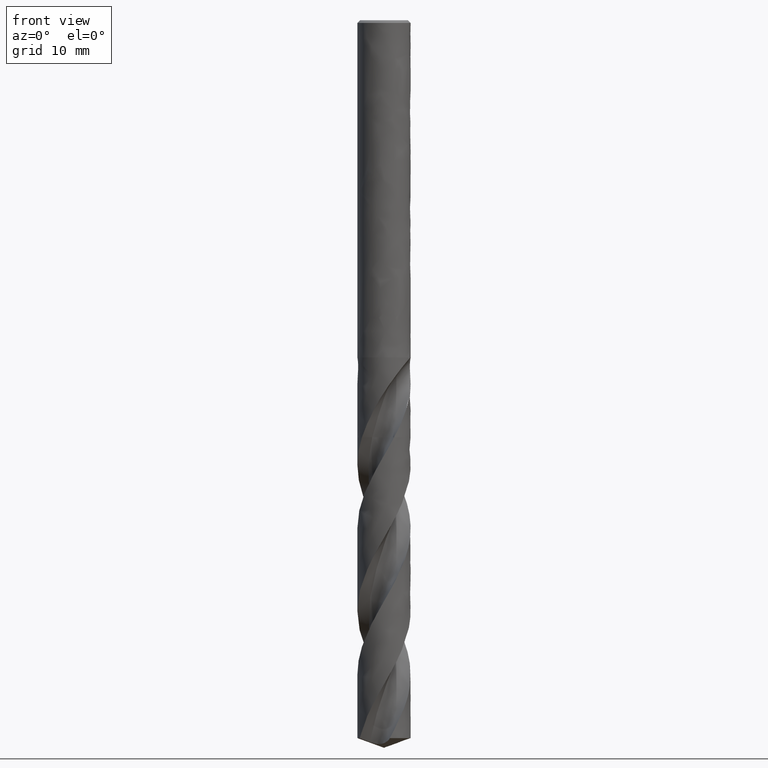
[diagram: clean part render]
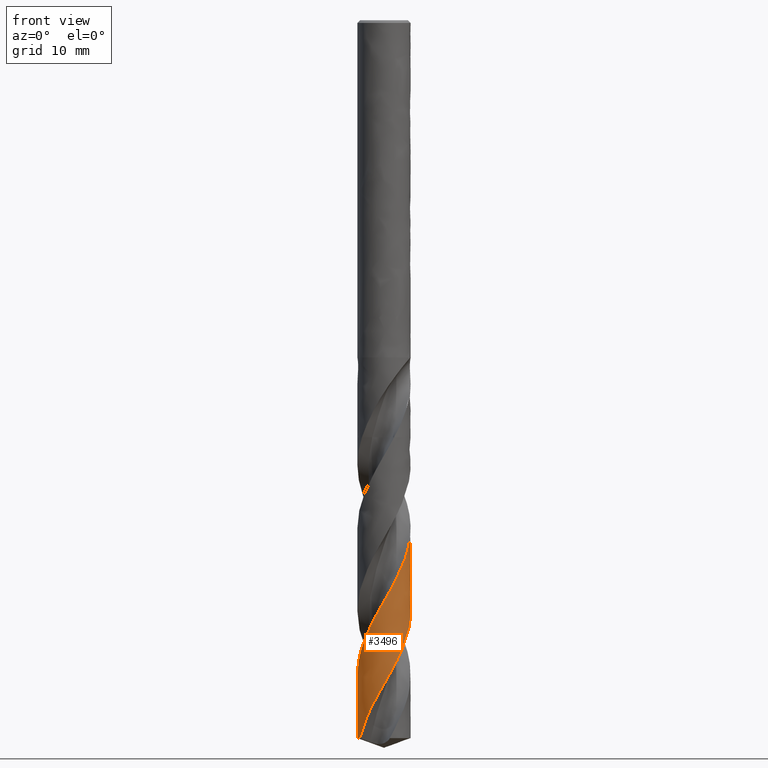
[diagram: same view with one face highlighted and labeled with its STEP entity id]
A machine part, front view. The second image highlights one B-rep face of the part: STEP entity #3496.
In plain terms, the highlighted face is a freeform B-spline surface patch.
Its self-contained STEP definition (entity closure, byte-faithful):
#1801 = VERTEX_POINT('', #1802);
#1802 = CARTESIAN_POINT('', (-1.15359555335687, 2.76933517279423, -47.));
#1863 = EDGE_CURVE('', #1864, #1801, #1866, .T.);
#1864 = VERTEX_POINT('', #1865);
#1865 = CARTESIAN_POINT('', (-3., 3.06161699786838E-15, -47.));
#1866 = CIRCLE('', #1867, 3.);
#1867 = AXIS2_PLACEMENT_3D('', #1868, #1869, #1870);
#1868 = CARTESIAN_POINT('', (1.76221774462768E-31, 2.87791997799628E-15, -47.));
#1869 = DIRECTION('', (3.74939945665464E-33, 6.12323399573677E-17, -1.));
#1870 = DIRECTION('', (-1., 6.12323399573677E-17, 0.));
#3105 = VERTEX_POINT('', #3106);
#3106 = CARTESIAN_POINT('', (-3., 3.25200755912258E-15, -50.1093138264314));
#3131 = EDGE_CURVE('', #3132, #3105, #3134, .T.);
#3132 = VERTEX_POINT('', #3133);
#3133 = CARTESIAN_POINT('', (-2.73960958333734, -1.22251352993994, -80.9080892972014));
#3134 = B_SPLINE_CURVE_WITH_KNOTS('', 3, (#3135, #3136, #3137, #3138, #3139, #3140, #3141, #3142, #3143, #3144, #3145, #3146, #3147, #3148, #3149, #3150, #3151, #3152, #3153, #3154, #3155, #3156, #3157, #3158, #3159, #3160, #3161, #3162, #3163, #3164, #3165, #3166, #3167, #3168, #3169, #3170, #3171, #3172, #3173, #3174, #3175, #3176, #3177, #3178, #3179, #3180, #3181, #3182, #3183, #3184, #3185, #3186, #3187, #3188, #3189, #3190, #3191, #3192, #3193, #3194, #3195, #3196, #3197, #3198, #3199, #3200, #3201, #3202, #3203, #3204, #3205, #3206, #3207, #3208, #3209, #3210, #3211, #3212, #3213, #3214, #3215, #3216, #3217, #3218, #3219, #3220, #3221, #3222, #3223, #3224, #3225, #3226, #3227, #3228, #3229, #3230, #3231, #3232, #3233, #3234, #3235, #3236, #3237, #3238, #3239, #3240, #3241, #3242, #3243, #3244, #3245, #3246, #3247, #3248, #3249, #3250, #3251, #3252, #3253, #3254, #3255, #3256, #3257, #3258, #3259, #3260, #3261, #3262, #3263, #3264, #3265, #3266, #3267, #3268, #3269, #3270, #3271, #3272, #3273, #3274, #3275, #3276, #3277, #3278, #3279, #3280, #3281, #3282, #3283, #3284, #3285, #3286, #3287, #3288, #3289, #3290, #3291, #3292, #3293, #3294, #3295, #3296, #3297, #3298, #3299, #3300, #3301, #3302, #3303, #3304, #3305, #3306, #3307, #3308, #3309, #3310, #3311, #3312, #3313, #3314, #3315), .UNSPECIFIED., .F., .U., (4, 3, 3, 3, 3, 3, 3, 3, 3, 3, 3, 3, 3, 3, 3, 3, 3, 3, 3, 3, 3, 3, 3, 3, 3, 3, 3, 3, 3, 3, 3, 3, 3, 3, 3, 3, 3, 3, 3, 3, 3, 3, 3, 3, 3, 3, 3, 3, 3, 3, 3, 3, 3, 3, 3, 3, 3, 3, 3, 3, 4), (0., 0.665718253699952, 1.33118446681704, 1.99640345409991, 2.66137848778931, 3.32611136859527, 3.99060241566733, 4.65485050421192, 5.31885303285902, 5.98260586578361, 6.64610323248587, 6.94133426738575, 6.98025186904818, 7.01918081919816, 7.68593522545791, 8.35239945581532, 9.01858618202882, 9.68450566736711, 10.3501660677568, 11.015573659672, 11.6807330088822, 12.345647089974, 13.0103173633935, 13.6747438142559, 14.3389249550699, 15.0028577926278, 15.6665377574488, 16.3299585921512, 16.4612560080745, 16.5196328714687, 17.1864019375123, 17.8528783279018, 18.5190748889326, 19.1850020235729, 19.85066799813, 20.516079174247, 21.1812401806722, 21.846154034937, 22.5108222218396, 23.1752447330758, 23.8394200702165, 24.5033452112988, 25.1670155393922, 25.8304247294591, 25.9617216349165, 26.0201016372813, 26.6868773039853, 27.3533581829147, 28.0195572224938, 28.6854849025309, 29.3511495441343, 30.0165575440101, 30.6817135477677, 31.3466205724911, 32.0112800855551, 32.6756920440214, 33.3398548969464, 34.0037655503618, 34.6674192947439, 35.3308096865067, 35.4638400829577), .UNSPECIFIED.);
#3135 = CARTESIAN_POINT('', (-2.73960958333733, -1.22251352993994, -80.9080892972014));
#3136 = CARTESIAN_POINT('', (-2.69492373279667, -1.32265294057437, -80.7151707040929));
#3137 = CARTESIAN_POINT('', (-2.64471975730666, -1.42038212094829, -80.5221856393616));
#3138 = CARTESIAN_POINT('', (-2.5893338482533, -1.5150413269247, -80.3292754370136));
#3139 = CARTESIAN_POINT('', (-2.53396890827615, -1.60966469497521, -80.1364382703673));
#3140 = CARTESIAN_POINT('', (-2.47338508514047, -1.70129020515644, -79.9435349676991));
#3141 = CARTESIAN_POINT('', (-2.40798888893388, -1.78929860860924, -79.750706314114));
#3142 = CARTESIAN_POINT('', (-2.3426169879189, -1.87727431626092, -79.5579492978619));
#3143 = CARTESIAN_POINT('', (-2.27238791089747, -1.96170070978893, -79.3651261730035));
#3144 = CARTESIAN_POINT('', (-2.19777313055356, -2.04200716615216, -79.1723776697301));
#3145 = CARTESIAN_POINT('', (-2.12318571344513, -2.1222841719901, -78.9796998524878));
#3146 = CARTESIAN_POINT('', (-2.04416068857027, -2.19850359098855, -78.786955930269));
#3147 = CARTESIAN_POINT('', (-1.96122867508954, -2.27015023379655, -78.5942866243876));
#3148 = CARTESIAN_POINT('', (-1.878326861579, -2.34177078623984, -78.4016874796785));
#3149 = CARTESIAN_POINT('', (-1.79145977574088, -2.40887470918129, -78.2090222151951));
#3150 = CARTESIAN_POINT('', (-1.70121066074968, -2.47100835444796, -78.0164315816548));
#3151 = CARTESIAN_POINT('', (-1.61099437891762, -2.53311939512883, -77.8239110137203));
#3152 = CARTESIAN_POINT('', (-1.51733221483639, -2.59030943789171, -77.6313242883388));
#3153 = CARTESIAN_POINT('', (-1.42085287676902, -2.64219172328149, -77.4388122270317));
#3154 = CARTESIAN_POINT('', (-1.32440881453871, -2.69405503889926, -77.2463705541025));
#3155 = CARTESIAN_POINT('', (-1.2250790107514, -2.74065246785615, -77.053862677712));
#3156 = CARTESIAN_POINT('', (-1.12352997705121, -2.78166863423151, -76.861429504957));
#3157 = CARTESIAN_POINT('', (-1.02201848409932, -2.82266963770947, -76.6690674710897));
#3158 = CARTESIAN_POINT('', (-0.918215359650354, -2.85812342029523, -76.4766391842581));
#3159 = CARTESIAN_POINT('', (-0.812816830925666, -2.88778960441448, -76.2842856419888));
#3160 = CARTESIAN_POINT('', (-0.707457936932242, -2.9174446326737, -76.0920044335655));
#3161 = CARTESIAN_POINT('', (-0.600428298349287, -2.94133796719728, -75.8996569260558));
#3162 = CARTESIAN_POINT('', (-0.492445451186141, -2.95930692521195, -75.707384198859));
#3163 = CARTESIAN_POINT('', (-0.384504164629102, -2.97726896730611, -75.5151854738885));
#3164 = CARTESIAN_POINT('', (-0.275532286146503, -2.98932419973187, -75.3229204123153));
#3165 = CARTESIAN_POINT('', (-0.16626003316643, -2.99538939060875, -75.1307301566613));
#3166 = CARTESIAN_POINT('', (-0.117638046174242, -2.99808816933691, -75.0452128194087));
#3167 = CARTESIAN_POINT('', (-0.0689452198782455, -2.99960300952438, -74.9596901773799));
#3168 = CARTESIAN_POINT('', (-0.0202466565649681, -2.99993167803834, -74.8741744600837));
#3169 = CARTESIAN_POINT('', (-0.0138271712652551, -2.99997500339643, -74.8629017067882));
#3170 = CARTESIAN_POINT('', (-0.00740751627175968, -2.99999772349384, -74.8516289521009));
#3171 = CARTESIAN_POINT('', (-0.000987838626309792, -2.99999983736247, -74.8403562252825));
#3172 = CARTESIAN_POINT('', (0.00543371101609529, -3.00000195184751, -74.8290802113037));
#3173 = CARTESIAN_POINT('', (0.0118552995318898, -2.99998344808903, -74.8178041967459));
#3174 = CARTESIAN_POINT('', (0.0182767794724001, -2.99994432603875, -74.8065282107415));
#3175 = CARTESIAN_POINT('', (0.128260481281688, -2.99927426431591, -74.6133991043992));
#3176 = CARTESIAN_POINT('', (0.238255794849848, -2.99254646296855, -74.4202030606089));
#3177 = CARTESIAN_POINT('', (0.347515987472613, -2.97980412753116, -74.2270824802488));
#3178 = CARTESIAN_POINT('', (0.456728629341027, -2.96706733764194, -74.0340459472353));
#3179 = CARTESIAN_POINT('', (0.565288121440559, -2.94831176423288, -73.8409425142161));
#3180 = CARTESIAN_POINT('', (0.67245769830898, -2.92366219731096, -73.6479145092976));
#3181 = CARTESIAN_POINT('', (0.779582651624736, -2.89902289404111, -73.4549668778917));
#3182 = CARTESIAN_POINT('', (0.885398479766339, -2.86847619363918, -73.2619523510439));
#3183 = CARTESIAN_POINT('', (0.989187307043416, -2.83222676909604, -73.0690132469038));
#3184 = CARTESIAN_POINT('', (1.09293449942153, -2.79599188601337, -72.8761515403055));
#3185 = CARTESIAN_POINT('', (1.194733226916, -2.75403199889917, -72.6832229199052));
#3186 = CARTESIAN_POINT('', (1.29389314724866, -2.70662899627986, -72.490369737166));
#3187 = CARTESIAN_POINT('', (1.3930144880782, -2.65924443643745, -72.2975915865561));
#3188 = CARTESIAN_POINT('', (1.48957230962698, -2.6063859950686, -72.1047464895481));
#3189 = CARTESIAN_POINT('', (1.58291206855566, -2.54840918677139, -71.9119768571505));
#3190 = CARTESIAN_POINT('', (1.67621637835435, -2.49045439725201, -71.719280435953));
#3191 = CARTESIAN_POINT('', (1.76637375535138, -2.427342474421, -71.5265170290619));
#3192 = CARTESIAN_POINT('', (1.8527732496832, -2.35949810028708, -71.333829118504));
#3193 = CARTESIAN_POINT('', (1.93914051107322, -2.29167903676151, -71.1412130937626));
#3194 = CARTESIAN_POINT('', (2.02181603843678, -2.21908132137823, -70.9485300438147));
#3195 = CARTESIAN_POINT('', (2.1002397129305, -2.14219353659504, -70.7559225205071));
#3196 = CARTESIAN_POINT('', (2.17863446980154, -2.0653341030969, -70.5633860185043));
#3197 = CARTESIAN_POINT('', (2.25283780593121, -1.98413159848875, -70.370782457074));
#3198 = CARTESIAN_POINT('', (2.32234703536575, -1.89913249862348, -70.1782544459392));
#3199 = CARTESIAN_POINT('', (2.39183077747206, -1.81416456584172, -69.9857970301003));
#3200 = CARTESIAN_POINT('', (2.45667448057184, -1.72534092289682, -69.793272530518));
#3201 = CARTESIAN_POINT('', (2.51643878682483, -1.63325926667004, -69.6008235938767));
#3202 = CARTESIAN_POINT('', (2.57618116959704, -1.54121138897342, -69.4084452537307));
#3203 = CARTESIAN_POINT('', (2.63089129703321, -1.44584100260548, -69.2159998192118));
#3204 = CARTESIAN_POINT('', (2.68019826507454, -1.34778976843253, -69.0236299457264));
#3205 = CARTESIAN_POINT('', (2.72948702870107, -1.24977473533644, -68.8313310962992));
#3206 = CARTESIAN_POINT('', (2.77341237114686, -1.14900974739939, -68.6389651585678));
#3207 = CARTESIAN_POINT('', (2.81167614371217, -1.0461726735487, -68.4466747626179));
#3208 = CARTESIAN_POINT('', (2.84992561141584, -0.943374045204371, -68.2544562541826));
#3209 = CARTESIAN_POINT('', (2.88254545011788, -0.838430409929518, -68.0621706825098));
#3210 = CARTESIAN_POINT('', (2.90931369809898, -0.732047680178154, -67.8699606139263));
#3211 = CARTESIAN_POINT('', (2.93607175083178, -0.625705468519151, -67.6778237525761));
#3212 = CARTESIAN_POINT('', (2.95700204423757, -0.517848247608761, -67.4856198736976));
#3213 = CARTESIAN_POINT('', (2.9719613283196, -0.409201494345432, -67.2934914383187));
#3214 = CARTESIAN_POINT('', (2.98691477163309, -0.300597161597337, -67.1014380184093));
#3215 = CARTESIAN_POINT('', (2.9959126966446, -0.191125225127529, -66.9093176483662));
#3216 = CARTESIAN_POINT('', (2.99889215522249, -0.0815220298139835, -66.7172726404615));
#3217 = CARTESIAN_POINT('', (2.99948181896482, -0.0598304947146048, -66.6792650712688));
#3218 = CARTESIAN_POINT('', (2.99983613654733, -0.0381319724842259, -66.6412571092889));
#3219 = CARTESIAN_POINT('', (2.99995499669625, -0.0164322182685904, -66.6032498434903));
#3220 = CARTESIAN_POINT('', (3.00000784375822, -0.00678417166671683, -66.5863512248244));
#3221 = CARTESIAN_POINT('', (3.00001414763295, 0.00286421013034433, -66.5694525878796));
#3222 = CARTESIAN_POINT('', (2.99997390641724, 0.0125124264499837, -66.5525540313923));
#3223 = CARTESIAN_POINT('', (2.99951427915653, 0.122712457941781, -66.359542038774));
#3224 = CARTESIAN_POINT('', (2.99297317313867, 0.232935888036166, -66.1664625209892));
#3225 = CARTESIAN_POINT('', (2.98039271097102, 0.342431436044806, -65.9734590380402));
#3226 = CARTESIAN_POINT('', (2.96781777094767, 0.451878921414133, -65.7805402732095));
#3227 = CARTESIAN_POINT('', (2.94919936494327, 0.56068107777612, -65.5875540292358));
#3228 = CARTESIAN_POINT('', (2.92466186848293, 0.668096516262546, -65.394643775915));
#3229 = CARTESIAN_POINT('', (2.9001346744309, 0.775466854886912, -65.2018145186404));
#3230 = CARTESIAN_POINT('', (2.8696750317583, 0.881531886651324, -65.0089177996187));
#3231 = CARTESIAN_POINT('', (2.83348787230691, 0.9855691135023, -64.8160970532103));
#3232 = CARTESIAN_POINT('', (2.79731534783913, 1.08956426512183, -64.6233542882878));
#3233 = CARTESIAN_POINT('', (2.75539296840348, 1.19161080576873, -64.43054405907));
#3234 = CARTESIAN_POINT('', (2.70800355073012, 1.29101385323051, -64.2378098022172));
#3235 = CARTESIAN_POINT('', (2.66063271800942, 1.39037791728583, -64.0451511309533));
#3236 = CARTESIAN_POINT('', (2.60776390927746, 1.48717446284335, -63.8524249804085));
#3237 = CARTESIAN_POINT('', (2.54975422201644, 1.58074457370865, -63.6597748125705));
#3238 = CARTESIAN_POINT('', (2.49176673925195, 1.67427886853528, -63.4671983858643));
#3239 = CARTESIAN_POINT('', (2.4285993185428, 1.76465856048569, -63.2745544588952));
#3240 = CARTESIAN_POINT('', (2.36067885269276, 1.85126857977151, -63.0819865294078));
#3241 = CARTESIAN_POINT('', (2.29278392239519, 1.93784603693243, -62.8894909982528));
#3242 = CARTESIAN_POINT('', (2.22008932780051, 2.0207206691242, -62.6969279453266));
#3243 = CARTESIAN_POINT('', (2.14308645029169, 2.09932857518212, -62.5044409038829));
#3244 = CARTESIAN_POINT('', (2.06611218454355, 2.17790727310303, -62.312025384353));
#3245 = CARTESIAN_POINT('', (1.9847760905446, 2.25228035188644, -62.1195423255979));
#3246 = CARTESIAN_POINT('', (1.89962797803559, 2.32194176177277, -61.9271352872153));
#3247 = CARTESIAN_POINT('', (1.81451132540979, 2.39157743368612, -61.7347993379359));
#3248 = CARTESIAN_POINT('', (1.72552287696853, 2.45655613230979, -61.5423958397976));
#3249 = CARTESIAN_POINT('', (1.63326413208288, 2.51643562899026, -61.3500683622712));
#3250 = CARTESIAN_POINT('', (1.54103948801487, 2.57629299292006, -61.1578119731196));
#3251 = CARTESIAN_POINT('', (1.44547928332676, 2.63109885485852, -60.9654880363129));
#3252 = CARTESIAN_POINT('', (1.34722937119015, 2.68047999832169, -60.7732401088985));
#3253 = CARTESIAN_POINT('', (1.24901600934005, 2.72984277133646, -60.5810637002944));
#3254 = CARTESIAN_POINT('', (1.14804297631651, 2.77382103253661, -60.3888197584055));
#3255 = CARTESIAN_POINT('', (1.04499263328225, 2.81211493299723, -60.1966518010931));
#3256 = CARTESIAN_POINT('', (0.941981109499802, 2.85039440807583, -60.0045562338001));
#3257 = CARTESIAN_POINT('', (0.836818434194774, 2.88302182495481, -59.8123931624597));
#3258 = CARTESIAN_POINT('', (0.730215212850915, 2.90977417387015, -59.6203060357579));
#3259 = CARTESIAN_POINT('', (0.623652905585732, 2.93651625529362, -59.4282926316672));
#3260 = CARTESIAN_POINT('', (0.515573182009755, 2.95740734350854, -59.2362117687613));
#3261 = CARTESIAN_POINT('', (0.406706306771059, 2.97230381691281, -59.0442067944639));
#3262 = CARTESIAN_POINT('', (0.297882267982553, 2.98719442891948, -58.8522773694234));
#3263 = CARTESIAN_POINT('', (0.188192047897696, 2.99610603725961, -58.6602805474065));
#3264 = CARTESIAN_POINT('', (0.0783767635500257, 2.99897600572853, -58.4683595414035));
#3265 = CARTESIAN_POINT('', (0.0566429569904141, 2.99954400807817, -58.4303759943593));
#3266 = CARTESIAN_POINT('', (0.0349023785580761, 2.99987575218732, -58.3923920538382));
#3267 = CARTESIAN_POINT('', (0.0131608171343367, 2.99997113200984, -58.3544088176695));
#3268 = CARTESIAN_POINT('', (0.00349362503328218, 3.00001354180041, -58.3375199092095));
#3269 = CARTESIAN_POINT('', (-0.00617385275304258, 3.00000922366033, -58.3206309822911));
#3270 = CARTESIAN_POINT('', (-0.015841111880066, 2.99995817623753, -58.3037421360957));
#3271 = CARTESIAN_POINT('', (-0.126253802673524, 2.99937514818011, -58.1108495148963));
#3272 = CARTESIAN_POINT('', (-0.236683291241483, 2.99268702104888, -57.9178887964063));
#3273 = CARTESIAN_POINT('', (-0.346373882801831, 2.9799371022412, -57.7250046881529));
#3274 = CARTESIAN_POINT('', (-0.456015979123086, 2.96719282029218, -57.5322058557724));
#3275 = CARTESIAN_POINT('', (-0.565002317757625, 2.94838251761552, -57.3393389815479));
#3276 = CARTESIAN_POINT('', (-0.672587263780209, 2.92363239354761, -57.1465486640438));
#3277 = CARTESIAN_POINT('', (-0.780126714617195, 2.89889273573478, -56.9538398731064));
#3278 = CARTESIAN_POINT('', (-0.886346781543194, 2.86819968772281, -56.7610630703335));
#3279 = CARTESIAN_POINT('', (-0.990520963992553, 2.83176062192611, -56.5683627941156));
#3280 = CARTESIAN_POINT('', (-1.09465271369019, 2.79533639867288, -56.3757410095431));
#3281 = CARTESIAN_POINT('', (-1.19681837745776, 2.75314351172118, -56.183051225318));
#3282 = CARTESIAN_POINT('', (-1.2963193906557, 2.70546780380216, -55.9904379535176));
#3283 = CARTESIAN_POINT('', (-1.39578110140168, 2.65781092757299, -55.797900763092));
#3284 = CARTESIAN_POINT('', (-1.49265473850632, 2.60463988259703, -55.6052955738999));
#3285 = CARTESIAN_POINT('', (-1.58627809933423, 2.54631533624031, -55.412766892782));
#3286 = CARTESIAN_POINT('', (-1.67986536441727, 2.48801327645025, -55.2203124395714));
#3287 = CARTESIAN_POINT('', (-1.77027477151554, 2.42451814039666, -55.027789982737));
#3288 = CARTESIAN_POINT('', (-1.85688843369167, 2.35626088216524, -54.835344034104));
#3289 = CARTESIAN_POINT('', (-1.9434692944788, 2.28802947358414, -54.6429709665185));
#3290 = CARTESIAN_POINT('', (-2.02632181220992, 2.21498870284879, -54.4505298893785));
#3291 = CARTESIAN_POINT('', (-2.10487980642887, 2.13763444033071, -54.2581653206075));
#3292 = CARTESIAN_POINT('', (-2.18340839507468, 2.06030913280883, -54.0658727571169));
#3293 = CARTESIAN_POINT('', (-2.25770407060673, 1.97861606631952, -53.873512180934));
#3294 = CARTESIAN_POINT('', (-2.3272591034261, 1.89310989261595, -53.6812281096751));
#3295 = CARTESIAN_POINT('', (-2.39678824438245, 1.80763554858805, -53.4890156161673));
#3296 = CARTESIAN_POINT('', (-2.46163187186331, 1.7182875062517, -53.2967351127645));
#3297 = CARTESIAN_POINT('', (-2.52134672922052, 1.62567237506485, -53.1045311042848));
#3298 = CARTESIAN_POINT('', (-2.58103934558487, 1.53309173868487, -52.9123986828133));
#3299 = CARTESIAN_POINT('', (-2.63565123750718, 1.43717785760641, -52.7201982626247));
#3300 = CARTESIAN_POINT('', (-2.68480885349821, 1.33858186906057, -52.5280743185308));
#3301 = CARTESIAN_POINT('', (-2.73394803900437, 1.24002284674748, -52.3360224067634));
#3302 = CARTESIAN_POINT('', (-2.77767339731668, 1.13871080233197, -52.1439025178072));
#3303 = CARTESIAN_POINT('', (-2.81568546530059, 1.03533345376992, -51.9518590754903));
#3304 = CARTESIAN_POINT('', (-2.85368309913653, 0.931995360213609, -51.7598885569477));
#3305 = CARTESIAN_POINT('', (-2.88599987132252, 0.826517134185892, -51.5678500939971));
#3306 = CARTESIAN_POINT('', (-2.91241389225002, 0.719614702621999, -51.3758880368851));
#3307 = CARTESIAN_POINT('', (-2.93881769192176, 0.612753638371943, -51.1840002620372));
#3308 = CARTESIAN_POINT('', (-2.95934281809386, 0.504390500197915, -50.9920445892502));
#3309 = CARTESIAN_POINT('', (-2.97384749983328, 0.395260733867177, -50.8001652674511));
#3310 = CARTESIAN_POINT('', (-2.98834642579123, 0.286174272663627, -50.60836208765));
#3311 = CARTESIAN_POINT('', (-2.9968403965278, 0.17624117800414, -50.4164910644331));
#3312 = CARTESIAN_POINT('', (-2.99926933935057, 0.0662074771578852, -50.2246963315322));
#3313 = CARTESIAN_POINT('', (-2.99975641789539, 0.0441422995063751, -50.186235525238));
#3314 = CARTESIAN_POINT('', (-3., 0.022071122967083, -50.1477743056546));
#3315 = CARTESIAN_POINT('', (-3., 3.27022215562033E-15, -50.1093138264315));
#3483 = EDGE_CURVE('', #1864, #3105, #3484, .T.);
#3484 = LINE('', #3485, #3486);
#3485 = CARTESIAN_POINT('', (-3., 3.06161699786838E-15, -47.));
#3486 = VECTOR('', #3487, 3.10931382643145);
#3487 = DIRECTION('', (4.44089209850063E-16, 1.90390561254194E-16, -3.10931382643145));
#3496 = ADVANCED_FACE('', (#3497), #3688, .T.);
#3497 = FACE_OUTER_BOUND('', #3498, .T.);
#3498 = EDGE_LOOP('', (#3499, #3500, #3518, #3671, #3679, #3686, #3687));
#3499 = ORIENTED_EDGE('', *, *, #1863, .T.);
#3500 = ORIENTED_EDGE('', *, *, #3501, .T.);
#3501 = EDGE_CURVE('', #1801, #3502, #3504, .T.);
#3502 = VERTEX_POINT('', #3503);
#3503 = CARTESIAN_POINT('', (-0.395477283486578, 2.97381870971418, -48.3659844486937));
#3504 = B_SPLINE_CURVE_WITH_KNOTS('', 3, (#3505, #3506, #3507, #3508, #3509, #3510, #3511, #3512, #3513, #3514, #3515, #3516, #3517), .UNSPECIFIED., .F., .U., (4, 3, 3, 3, 4), (3.60658912974348, 3.72644503063888, 4.1693437632163, 4.83312252950946, 5.18317561092411), .UNSPECIFIED.);
#3505 = CARTESIAN_POINT('', (-1.15359555335687, 2.76933517279423, -47.));
#3506 = CARTESIAN_POINT('', (-1.13517314163245, 2.77700922122874, -47.0346104520523));
#3507 = CARTESIAN_POINT('', (-1.11667266753127, 2.78450002405472, -47.0692251914602));
#3508 = CARTESIAN_POINT('', (-1.09810185368278, 2.79180449153203, -47.1038363066151));
#3509 = CARTESIAN_POINT('', (-1.02947786558556, 2.81879639901167, -47.2317333806902));
#3510 = CARTESIAN_POINT('', (-0.95985178786462, 2.84325898983247, -47.3596554400163));
#3511 = CARTESIAN_POINT('', (-0.88943004347195, 2.86512027631816, -47.4875551602608));
#3512 = CARTESIAN_POINT('', (-0.783887951849442, 2.89788410404149, -47.6792403295073));
#3513 = CARTESIAN_POINT('', (-0.676496070555252, 2.92481839920952, -47.8710004256311));
#3514 = CARTESIAN_POINT('', (-0.567997560717653, 2.94573908739705, -48.0626934192145));
#3515 = CARTESIAN_POINT('', (-0.510779343404604, 2.95677190697074, -48.1637854192859));
#3516 = CARTESIAN_POINT('', (-0.453236083602287, 2.96613757794492, -48.2648896357575));
#3517 = CARTESIAN_POINT('', (-0.395477283486571, 2.97381870971418, -48.3659844486937));
#3518 = ORIENTED_EDGE('', *, *, #3519, .T.);
#3519 = EDGE_CURVE('', #3502, #3520, #3522, .T.);
#3520 = VERTEX_POINT('', #3521);
#3521 = CARTESIAN_POINT('', (-3., 4.70012382713604E-15, -73.7588472106153));
#3522 = B_SPLINE_CURVE_WITH_KNOTS('', 3, (#3523, #3524, #3525, #3526, #3527, #3528, #3529, #3530, #3531, #3532, #3533, #3534, #3535, #3536, #3537, #3538, #3539, #3540, #3541, #3542, #3543, #3544, #3545, #3546, #3547, #3548, #3549, #3550, #3551, #3552, #3553, #3554, #3555, #3556, #3557, #3558, #3559, #3560, #3561, #3562, #3563, #3564, #3565, #3566, #3567, #3568, #3569, #3570, #3571, #3572, #3573, #3574, #3575, #3576, #3577, #3578, #3579, #3580, #3581, #3582, #3583, #3584, #3585, #3586, #3587, #3588, #3589, #3590, #3591, #3592, #3593, #3594, #3595, #3596, #3597, #3598, #3599, #3600, #3601, #3602, #3603, #3604, #3605, #3606, #3607, #3608, #3609, #3610, #3611, #3612, #3613, #3614, #3615, #3616, #3617, #3618, #3619, #3620, #3621, #3622, #3623, #3624, #3625, #3626, #3627, #3628, #3629, #3630, #3631, #3632, #3633, #3634, #3635, #3636, #3637, #3638, #3639, #3640, #3641, #3642, #3643, #3644, #3645, #3646, #3647, #3648, #3649, #3650, #3651, #3652, #3653, #3654, #3655, #3656, #3657, #3658, #3659, #3660, #3661, #3662, #3663, #3664, #3665, #3666, #3667, #3668, #3669, #3670), .UNSPECIFIED., .F., .U., (4, 3, 3, 3, 3, 3, 3, 3, 3, 3, 3, 3, 3, 3, 3, 3, 3, 3, 3, 3, 3, 3, 3, 3, 3, 3, 3, 3, 3, 3, 3, 3, 3, 3, 3, 3, 3, 3, 3, 3, 3, 3, 3, 3, 3, 3, 3, 3, 3, 4), (0., 0.663370209993853, 0.794665499838566, 1.46147794485178, 2.12798777126025, 2.79420904141604, 3.46015330505016, 4.1258298186643, 4.79124583407896, 5.45640678352405, 6.12131641987806, 6.78597690876747, 7.45038888010793, 8.11455144135669, 8.77846215330869, 9.44211696718905, 10.1055101197242, 10.2368064169568, 10.2757300755194, 10.9425147545849, 11.6090013905903, 12.2752037680497, 12.9411331313875, 13.6067985131627, 14.2722069834633, 14.9373638360663, 15.602272722362, 16.2669357406054, 16.9313534853678, 17.5955250598479, 18.2594480517261, 18.9231184713381, 19.5865306489317, 19.7178277817561, 19.7567491811977, 20.4235197284559, 21.089996050465, 21.756191728351, 22.4221178456225, 23.0877833155846, 23.7531951258146, 24.4183585209122, 25.0832771342579, 25.7479530761746, 26.4123869832773, 27.0765780316479, 27.7405239145568, 28.404220783616, 29.0676631503059, 29.2544445023021), .UNSPECIFIED.);
#3523 = CARTESIAN_POINT('', (-0.395477283486578, 2.97381870971418, -48.3659844486937));
#3524 = CARTESIAN_POINT('', (-0.286021119847301, 2.98837488494958, -48.5575647856406));
#3525 = CARTESIAN_POINT('', (-0.175730882419132, 2.99688263067033, -48.7492248468365));
#3526 = CARTESIAN_POINT('', (-0.0653630432773525, 2.99928786090524, -48.9408200306264));
#3527 = CARTESIAN_POINT('', (-0.0435188645497776, 2.99976390790898, -48.9787408549408));
#3528 = CARTESIAN_POINT('', (-0.0216696559609266, 3.00000129629765, -49.0166625289318));
#3529 = CARTESIAN_POINT('', (0.00017872556536898, 2.9999999946762, -49.0545839200548));
#3530 = CARTESIAN_POINT('', (0.111140609440728, 2.99999338410104, -49.2471761719391));
#3531 = CARTESIAN_POINT('', (0.222130415203132, 2.99382108879247, -49.4398502166846));
#3532 = CARTESIAN_POINT('', (0.332382692667118, 2.98153010141024, -49.6324578025838));
#3533 = CARTESIAN_POINT('', (0.442584934486711, 2.96924469203047, -49.8249779776384));
#3534 = CARTESIAN_POINT('', (0.55213309645108, 2.95083693769214, -50.017579728619));
#3535 = CARTESIAN_POINT('', (0.660273192672881, 2.92643799029427, -50.2101151646919));
#3536 = CARTESIAN_POINT('', (0.768366471128922, 2.90204960608475, -50.4025672451987));
#3537 = CARTESIAN_POINT('', (0.875133829079272, 2.87165698845793, -50.5951007925715));
#3538 = CARTESIAN_POINT('', (0.979842120520466, 2.83547340295331, -50.787568128155));
#3539 = CARTESIAN_POINT('', (1.08450687555581, 2.7993048621337, -50.9799554382131));
#3540 = CARTESIAN_POINT('', (1.18719241459526, 2.75732319154077, -51.1724240506893));
#3541 = CARTESIAN_POINT('', (1.2871950906292, 2.70982080563653, -51.3648265961051));
#3542 = CARTESIAN_POINT('', (1.38715755951673, 2.66233751857505, -51.5571517840178));
#3543 = CARTESIAN_POINT('', (1.48451383918348, 2.60930258210234, -51.7495580971014));
#3544 = CARTESIAN_POINT('', (1.57859816608129, 2.55108365798633, -51.9418985035398));
#3545 = CARTESIAN_POINT('', (1.67264567509946, 2.49288751659527, -52.1341636416932));
#3546 = CARTESIAN_POINT('', (1.76349385802224, 2.42946810887329, -52.3265097074034));
#3547 = CARTESIAN_POINT('', (1.85052271227478, 2.36126357939032, -52.5187900466479));
#3548 = CARTESIAN_POINT('', (1.93751820679661, 2.29308519393461, -52.7109966813677));
#3549 = CARTESIAN_POINT('', (2.02076213061899, 2.22007456695456, -52.9032840305839));
#3550 = CARTESIAN_POINT('', (2.09968755541754, 2.14273474084515, -53.0955058486964));
#3551 = CARTESIAN_POINT('', (2.17858316037702, 2.06542413549919, -53.2876550409891));
#3552 = CARTESIAN_POINT('', (2.253222380056, 1.98372995239205, -53.4798847217933));
#3553 = CARTESIAN_POINT('', (2.32309801649419, 1.8982137934808, -53.6720490792507));
#3554 = CARTESIAN_POINT('', (2.39294746991938, 1.81272967822332, -53.8641414310402));
#3555 = CARTESIAN_POINT('', (2.45808909072459, 1.72336260925906, -54.0563140359237));
#3556 = CARTESIAN_POINT('', (2.51808133313182, 1.63072572793007, -54.2484215339288));
#3557 = CARTESIAN_POINT('', (2.57805114435007, 1.5381234836693, -54.4404572026536));
#3558 = CARTESIAN_POINT('', (2.63292031113339, 1.44218458571978, -54.6325728833127));
#3559 = CARTESIAN_POINT('', (2.68231805554671, 1.34356609397832, -54.8246236784055));
#3560 = CARTESIAN_POINT('', (2.73169725680232, 1.24498462211026, -55.0166023805674));
#3561 = CARTESIAN_POINT('', (2.77564617544469, 1.1436516605924, -55.2086608517763));
#3562 = CARTESIAN_POINT('', (2.81386904770394, 1.04026005516591, -55.4006546593839));
#3563 = CARTESIAN_POINT('', (2.85207742591601, 0.936907655657721, -55.592575663271));
#3564 = CARTESIAN_POINT('', (2.88459281296412, 0.831420538729233, -55.7845761958675));
#3565 = CARTESIAN_POINT('', (2.91119778213779, 0.724518787386644, -55.9765122830369));
#3566 = CARTESIAN_POINT('', (2.93779249667904, 0.617658240307716, -56.1683743902663));
#3567 = CARTESIAN_POINT('', (2.95850137258037, 0.509303745125927, -56.3603157929251));
#3568 = CARTESIAN_POINT('', (2.97318767562438, 0.400193759966115, -56.5521929598715));
#3569 = CARTESIAN_POINT('', (2.98786818825185, 0.291126793955552, -56.7439944747823));
#3570 = CARTESIAN_POINT('', (2.99654195028428, 0.181222772219661, -56.9358750635983));
#3571 = CARTESIAN_POINT('', (2.99915427479753, 0.0712294599512518, -57.1276916131051));
#3572 = CARTESIAN_POINT('', (2.99967129631705, 0.049459994038019, -57.1656552288011));
#3573 = CARTESIAN_POINT('', (2.9999512776163, 0.0276851055817162, -57.2036197034028));
#3574 = CARTESIAN_POINT('', (2.99999417756223, 0.00591054927512906, -57.2415838961554));
#3575 = CARTESIAN_POINT('', (3.00000689553587, -0.00054466243222966, -57.2528386330174));
#3576 = CARTESIAN_POINT('', (2.99999877841763, -0.00699988192582681, -57.2640934082414));
#3577 = CARTESIAN_POINT('', (2.99996982719614, -0.013454958676969, -57.2753481924565));
#3578 = CARTESIAN_POINT('', (2.99947387610506, -0.124034139535259, -57.468149125308));
#3579 = CARTESIAN_POINT('', (2.99285457185993, -0.234613909326697, -57.6610306156591));
#3580 = CARTESIAN_POINT('', (2.98016162343462, -0.344436784051165, -57.8538466579448));
#3581 = CARTESIAN_POINT('', (2.96747434857277, -0.45421056954686, -58.046576514262));
#3582 = CARTESIAN_POINT('', (2.94870945672143, -0.563309833635533, -58.2393868924282));
#3583 = CARTESIAN_POINT('', (2.92399956687938, -0.670989219651987, -58.432131852447));
#3584 = CARTESIAN_POINT('', (2.89930021587935, -0.778622680087857, -58.6247946061632));
#3585 = CARTESIAN_POINT('', (2.86864270902863, -0.884917063711024, -58.817537812137));
#3586 = CARTESIAN_POINT('', (2.83224050826412, -0.989147968379497, -59.0102156642795));
#3587 = CARTESIAN_POINT('', (2.79585322536121, -1.09333615853682, -59.2028145557692));
#3588 = CARTESIAN_POINT('', (2.75369921097972, -1.19553923174003, -59.3954937973799));
#3589 = CARTESIAN_POINT('', (2.70606978678979, -1.29506227997881, -59.5881077822019));
#3590 = CARTESIAN_POINT('', (2.65845924341593, -1.39454587621075, -59.7806454127684));
#3591 = CARTESIAN_POINT('', (2.60534273887721, -1.49142453796158, -59.9732632607266));
#3592 = CARTESIAN_POINT('', (2.54708558859588, -1.58504101031087, -60.1658159794551));
#3593 = CARTESIAN_POINT('', (2.48885092247969, -1.67862135167511, -60.3582943830633));
#3594 = CARTESIAN_POINT('', (2.4254369732326, -1.76901052543463, -60.5508528432167));
#3595 = CARTESIAN_POINT('', (2.35727834386136, -1.85559661822344, -60.7433463294984));
#3596 = CARTESIAN_POINT('', (2.28914548800844, -1.94214996932906, -60.9357670262531));
#3597 = CARTESIAN_POINT('', (2.21622172010437, -2.02496643271693, -61.1282675935531));
#3598 = CARTESIAN_POINT('', (2.13900543598485, -2.10348656872993, -61.3207033669455));
#3599 = CARTESIAN_POINT('', (2.06181793761226, -2.1819774329282, -61.5130674014872));
#3600 = CARTESIAN_POINT('', (1.98028465382854, -2.25623261599118, -61.7055110988434));
#3601 = CARTESIAN_POINT('', (1.89496155029225, -2.32575164686902, -61.8978902032221));
#3602 = CARTESIAN_POINT('', (1.80966999728224, -2.39524497120409, -62.0901981702213));
#3603 = CARTESIAN_POINT('', (1.72052894280573, -2.46005657145792, -62.2825855744236));
#3604 = CARTESIAN_POINT('', (1.62814503983718, -2.51975072760255, -62.4749086034863));
#3605 = CARTESIAN_POINT('', (1.53579522831175, -2.57942285545152, -62.6671606616397));
#3606 = CARTESIAN_POINT('', (1.44013716713905, -2.63402513316459, -62.859491917753));
#3607 = CARTESIAN_POINT('', (1.34182073136696, -2.68319159302384, -63.0517590290253));
#3608 = CARTESIAN_POINT('', (1.24354072235339, -2.73233983645014, -63.2439549043178));
#3609 = CARTESIAN_POINT('', (1.1425319790185, -2.77609247042747, -63.4362297293102));
#3610 = CARTESIAN_POINT('', (1.03947963480694, -2.81415743852786, -63.628440647416));
#3611 = CARTESIAN_POINT('', (0.936465860478292, -2.85220815987458, -63.8205796258423));
#3612 = CARTESIAN_POINT('', (0.831333993257818, -2.88460356209589, -64.012797301638));
#3613 = CARTESIAN_POINT('', (0.724796054136294, -2.91112876388328, -64.204951311029));
#3614 = CARTESIAN_POINT('', (0.618298644607873, -2.93764387484627, -64.3970322204157));
#3615 = CARTESIAN_POINT('', (0.510317425825286, -2.95831288151006, -64.5891915760094));
#3616 = CARTESIAN_POINT('', (0.401582625833603, -2.97300040272938, -64.7812875027951));
#3617 = CARTESIAN_POINT('', (0.292890135840081, -2.98768220886028, -64.9733086827811));
#3618 = CARTESIAN_POINT('', (0.183364022168398, -2.996398085465, -65.1654080644674));
#3619 = CARTESIAN_POINT('', (0.0737438327846927, -2.99909350423213, -65.3574442464036));
#3620 = CARTESIAN_POINT('', (0.0520486980677478, -2.99962695955273, -65.3954504828557));
#3621 = CARTESIAN_POINT('', (0.030347997278024, -2.99992498535587, -65.4334575758224));
#3622 = CARTESIAN_POINT('', (0.00864742612163121, -2.99998753697769, -65.4714644009068));
#3623 = CARTESIAN_POINT('', (0.00221456212894924, -3.00000607962676, -65.4827310507475));
#3624 = CARTESIAN_POINT('', (-0.00421832651128084, -3.00000393111684, -65.4939977395671));
#3625 = CARTESIAN_POINT('', (-0.0106510921248437, -2.99998109231317, -65.5052644376886));
#3626 = CARTESIAN_POINT('', (-0.120852130886948, -2.99958983604188, -65.6982765744571));
#3627 = CARTESIAN_POINT('', (-0.231059262684983, -2.99311714242084, -65.891368131426));
#3628 = CARTESIAN_POINT('', (-0.34052257965941, -2.98061140921491, -66.0843953208052));
#3629 = CARTESIAN_POINT('', (-0.449937593852858, -2.96811119440279, -66.2773373332473));
#3630 = CARTESIAN_POINT('', (-0.558690331452469, -2.94957407209015, -66.4703588013946));
#3631 = CARTESIAN_POINT('', (-0.666042978622016, -2.92513021088435, -66.6633158630989));
#3632 = CARTESIAN_POINT('', (-0.773350421050568, -2.90069664265635, -66.8561916732065));
#3633 = CARTESIAN_POINT('', (-0.879337522886133, -2.87034346359306, -67.0491469478341));
#3634 = CARTESIAN_POINT('', (-0.983287241320744, -2.83428054381659, -67.2420378144819));
#3635 = CARTESIAN_POINT('', (-1.0871948989151, -2.79823221606337, -67.4348506323186));
#3636 = CARTESIAN_POINT('', (-1.18914232473903, -2.75645261260711, -67.6277428782886));
#3637 = CARTESIAN_POINT('', (-1.288441586982, -2.70922835452011, -67.8205707599055));
#3638 = CARTESIAN_POINT('', (-1.38770198292306, -2.66202258027912, -68.0133231675812));
#3639 = CARTESIAN_POINT('', (-1.48438801183053, -2.60934233698835, -68.2061549243275));
#3640 = CARTESIAN_POINT('', (-1.57784882176953, -2.55154719643604, -68.3989224027126));
#3641 = CARTESIAN_POINT('', (-1.67127401735706, -2.49377407940834, -68.591616424761));
#3642 = CARTESIAN_POINT('', (-1.76154371098623, -2.43084839999461, -68.7843896772523));
#3643 = CARTESIAN_POINT('', (-1.84805164377161, -2.36319807082543, -68.9770987763715));
#3644 = CARTESIAN_POINT('', (-1.9345272809481, -2.29557299724267, -69.1697359322886));
#3645 = CARTESIAN_POINT('', (-2.01730610188784, -2.22317823543557, -69.362452164118));
#3646 = CARTESIAN_POINT('', (-2.09583341703465, -2.14650466760285, -69.5551044026557));
#3647 = CARTESIAN_POINT('', (-2.17433183393795, -2.06985931583011, -69.7476857446998));
#3648 = CARTESIAN_POINT('', (-2.24863825747143, -1.98888327641788, -69.9403459764032));
#3649 = CARTESIAN_POINT('', (-2.31825592975246, -1.90412432476652, -70.132942405574));
#3650 = CARTESIAN_POINT('', (-2.38784819408177, -1.8193963070904, -70.3254685439606));
#3651 = CARTESIAN_POINT('', (-2.45280516464109, -1.73082723971394, -70.5180733587));
#3652 = CARTESIAN_POINT('', (-2.51269369149396, -1.6390150739778, -70.7106145874539));
#3653 = CARTESIAN_POINT('', (-2.57256041056421, -1.54723634068452, -70.903085704327));
#3654 = CARTESIAN_POINT('', (-2.62740550911335, -1.45215076379536, -71.0956352623168));
#3655 = CARTESIAN_POINT('', (-2.67686436892318, -1.35439918428413, -71.2881214713212));
#3656 = CARTESIAN_POINT('', (-2.72630515091389, -1.25668333417263, -71.4805373242584));
#3657 = CARTESIAN_POINT('', (-2.77039935577014, -1.15623283971874, -71.6730313666916));
#3658 = CARTESIAN_POINT('', (-2.80885500838535, -1.05372365536157, -71.8654623118453));
#3659 = CARTESIAN_POINT('', (-2.84729646629281, -0.951252309080613, -72.0578222271025));
#3660 = CARTESIAN_POINT('', (-2.88013140746418, -0.846649509784148, -72.2502600697793));
#3661 = CARTESIAN_POINT('', (-2.90714374646628, -0.740618145458358, -72.4426350754668));
#3662 = CARTESIAN_POINT('', (-2.93414595445213, -0.634626548346876, -72.6349379306342));
#3663 = CARTESIAN_POINT('', (-2.9553495802122, -0.527130338738408, -72.8273184469597));
#3664 = CARTESIAN_POINT('', (-2.97061676558266, -0.418850847008353, -73.0196363887161));
#3665 = CARTESIAN_POINT('', (-2.98587809657135, -0.31061287632274, -73.2118805838962));
#3666 = CARTESIAN_POINT('', (-2.9952186905016, -0.201513185874, -73.4042021763523));
#3667 = CARTESIAN_POINT('', (-2.99858031018869, -0.09228284428725, -73.5964614520507));
#3668 = CARTESIAN_POINT('', (-2.99952671925386, -0.0615308273752621, -73.650588907956));
#3669 = CARTESIAN_POINT('', (-3., -0.0307644812740803, -73.7047185637729));
#3670 = CARTESIAN_POINT('', (-3., 4.44810103214178E-15, -73.7588472106153));
#3671 = ORIENTED_EDGE('', *, *, #3672, .T.);
#3672 = EDGE_CURVE('', #3520, #3673, #3675, .T.);
#3673 = VERTEX_POINT('', #3674);
#3674 = CARTESIAN_POINT('', (-3., 5.1378886490194E-15, -80.9080892972014));
#3675 = LINE('', #3676, #3677);
#3676 = CARTESIAN_POINT('', (-3., 4.70012382713604E-15, -73.7588472106153));
#3677 = VECTOR('', #3678, 7.1492420865861);
#3678 = DIRECTION('', (0., 4.3776482188336E-16, -7.1492420865861));
#3679 = ORIENTED_EDGE('', *, *, #3680, .F.);
#3680 = EDGE_CURVE('', #3132, #3673, #3681, .T.);
#3681 = CIRCLE('', #3682, 3.);
#3682 = AXIS2_PLACEMENT_3D('', #3683, #3684, #3685);
#3683 = CARTESIAN_POINT('', (3.03356746049892E-31, 4.9541916291473E-15, -80.9080892972014));
#3684 = DIRECTION('', (3.74939945665464E-33, 6.12323399573677E-17, -1.));
#3685 = DIRECTION('', (-1., 6.12323399573677E-17, 0.));
#3686 = ORIENTED_EDGE('', *, *, #3131, .T.);
#3687 = ORIENTED_EDGE('', *, *, #3483, .F.);
#3688 = (
   BOUNDED_SURFACE ()
   B_SPLINE_SURFACE (2, 1, ((#3689, #3690), (#3691, #3692), (#3693, #3694), (#3695, #3696), (#3697, #3698), (#3699, #3700), (#3701, #3702), (#3703, #3704), (#3705, #3706)), .UNSPECIFIED., .T., .F., .U.)
   B_SPLINE_SURFACE_WITH_KNOTS ((3, 2, 2, 2, 3), (2, 2), (0., 4.71238898038469, 9.42477796076938, 14.1371669411541, 18.8495559215388), (0.209750658848074, 1.), .UNSPECIFIED.)
   GEOMETRIC_REPRESENTATION_ITEM ()
   RATIONAL_B_SPLINE_SURFACE (((1., 1.), (0.707106781186548, 0.707106781186548), (1., 1.), (0.707106781186548, 0.707106781186548), (1., 1.), (0.707106781186548, 0.707106781186548), (1., 1.), (0.707106781186548, 0.707106781186548), (1., 1.)))
   REPRESENTATION_ITEM ('')
   SURFACE ()
);
#3689 = CARTESIAN_POINT('', (-3., 3.06161699786838E-15, -47.));
#3690 = CARTESIAN_POINT('', (-3., 5.1378886490194E-15, -80.9080892972014));
#3691 = CARTESIAN_POINT('', (-3., 3., -47.));
#3692 = CARTESIAN_POINT('', (-3., 3.00000000000001, -80.9080892972014));
#3693 = CARTESIAN_POINT('', (1.72563323017096E-31, 3., -47.));
#3694 = CARTESIAN_POINT('', (3.20474742746036E-31, 3., -80.9080892972014));
#3695 = CARTESIAN_POINT('', (3., 3., -47.));
#3696 = CARTESIAN_POINT('', (3., 3.00000000000001, -80.9080892972014));
#3697 = CARTESIAN_POINT('', (3., 3.06161699786838E-15, -47.));
#3698 = CARTESIAN_POINT('', (3., 5.1378886490194E-15, -80.9080892972014));
#3699 = CARTESIAN_POINT('', (3., -3., -47.));
#3700 = CARTESIAN_POINT('', (3., -2.99999999999999, -80.9080892972014));
#3701 = CARTESIAN_POINT('', (3.67394039744206E-16, -3., -47.));
#3702 = CARTESIAN_POINT('', (3.67394039744206E-16, -3., -80.9080892972014));
#3703 = CARTESIAN_POINT('', (-3., -3., -47.));
#3704 = CARTESIAN_POINT('', (-3., -3., -80.9080892972014));
#3705 = CARTESIAN_POINT('', (-3., 3.06161699786838E-15, -47.));
#3706 = CARTESIAN_POINT('', (-3., 5.1378886490194E-15, -80.9080892972014));